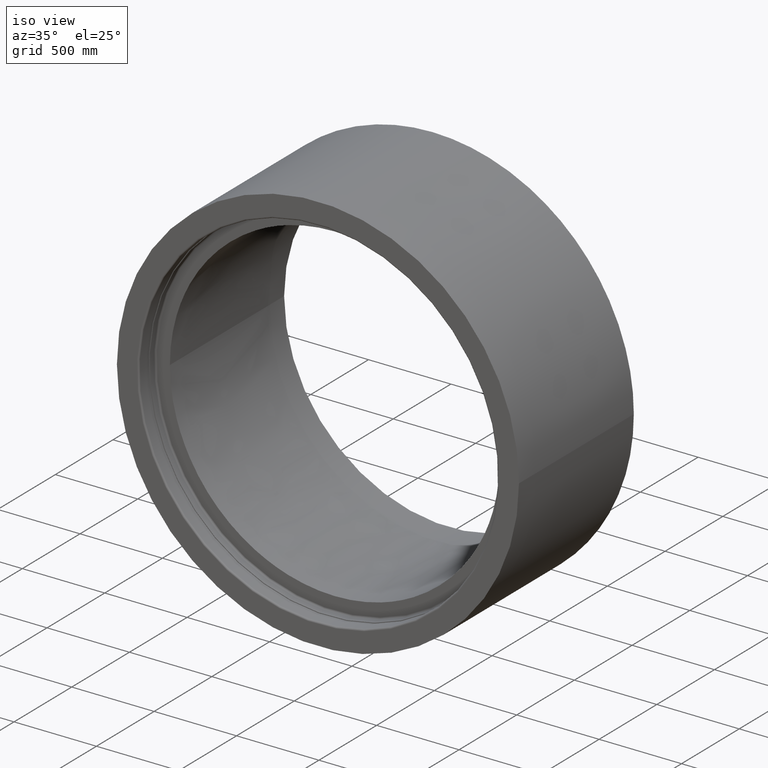
[diagram: clean part render]
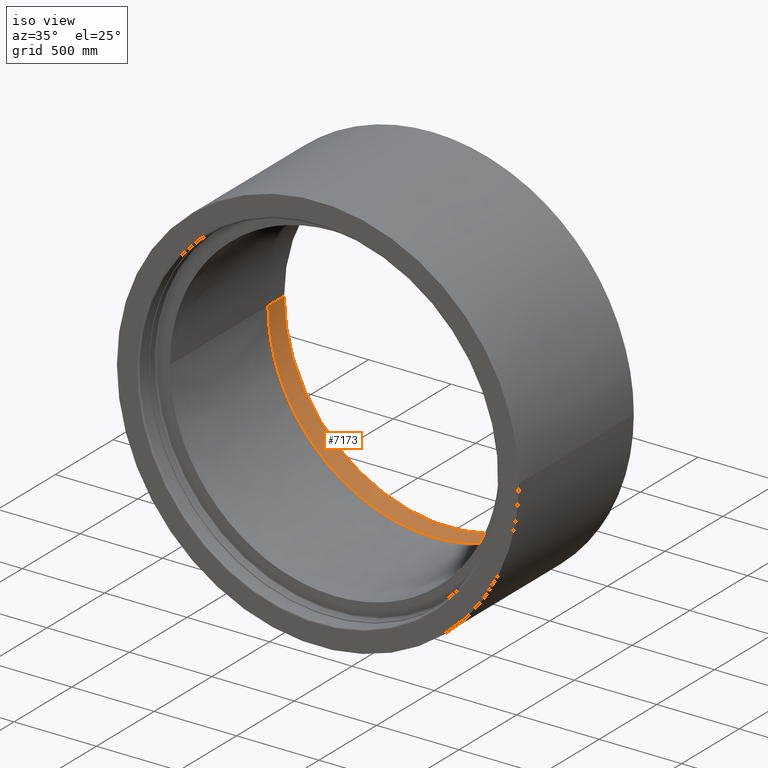
[diagram: same view with one face highlighted and labeled with its STEP entity id]
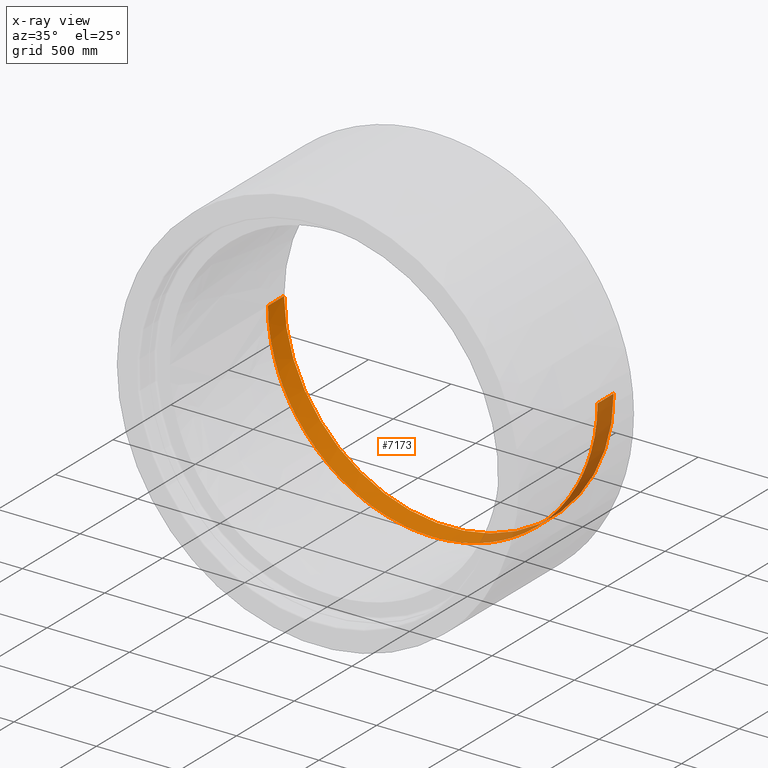
[diagram: x-ray of the same camera — body ghosted, the highlighted face saturated]
A machine part, iso view. The second image highlights one B-rep face of the part: STEP entity #7173.
The next image is the same camera in x-ray: the body ghosted, the highlighted face saturated — about 22% of this face is hidden behind the body in this view.
In plain terms, the highlighted cylindrical surface (partial cylindrical patch) has radius 1000 mm, axis along (0, -1, 0).
Its self-contained STEP definition (entity closure, byte-faithful):
#183 = CIRCLE ( 'NONE', #9343, 1000.000000000000000 ) ;
#251 = AXIS2_PLACEMENT_3D ( 'NONE', #13107, #20116, #2073 ) ;
#801 = ORIENTED_EDGE ( 'NONE', *, *, #18950, .F. ) ;
#953 = CARTESIAN_POINT ( 'NONE',  ( 1000.000000000000000, 1.224646799147353249E-13, 990.0000000000000000 ) ) ;
#1034 = ORIENTED_EDGE ( 'NONE', *, *, #21136, .F. ) ;
#1259 = CARTESIAN_POINT ( 'NONE',  ( -1000.000000000000000, 0.0000000000000000000, 990.0000000000000000 ) ) ;
#1347 = CARTESIAN_POINT ( 'NONE',  ( 0.0000000000000000000, 0.0000000000000000000, 850.0000000000000000 ) ) ;
#1647 = ORIENTED_EDGE ( 'NONE', *, *, #11086, .F. ) ;
#2073 = DIRECTION ( 'NONE',  ( 1.000000000000000000, 0.0000000000000000000, 0.0000000000000000000 ) ) ;
#2105 = CARTESIAN_POINT ( 'NONE',  ( 479.1394168684765873, 877.7388311902170699, 850.0000000000001137 ) ) ;
#2344 = AXIS2_PLACEMENT_3D ( 'NONE', #5813, #16394, #7658 ) ;
#2405 = ORIENTED_EDGE ( 'NONE', *, *, #10927, .F. ) ;
#2463 = CIRCLE ( 'NONE', #14588, 1000.000000000000227 ) ;
#2755 = VERTEX_POINT ( 'NONE', #18893 ) ;
#2961 = DIRECTION ( 'NONE',  ( 0.0000000000000000000, 0.0000000000000000000, 1.000000000000000000 ) ) ;
#3303 = VERTEX_POINT ( 'NONE', #953 ) ;
#3377 = DIRECTION ( 'NONE',  ( 1.000000000000000000, 0.0000000000000000000, 0.0000000000000000000 ) ) ;
#3536 = ORIENTED_EDGE ( 'NONE', *, *, #16318, .F. ) ;
#3613 = CIRCLE ( 'NONE', #10663, 1000.000000000000000 ) ;
#3952 = CARTESIAN_POINT ( 'NONE',  ( 0.0000000000000000000, 0.0000000000000000000, 850.0000000000000000 ) ) ;
#4129 = DIRECTION ( 'NONE',  ( -0.7822983126862211867, 0.6229039652854132525, 0.0000000000000000000 ) ) ;
#4187 = CARTESIAN_POINT ( 'NONE',  ( 0.0000000000000000000, 0.0000000000000000000, 850.0000000000000000 ) ) ;
#4197 = AXIS2_PLACEMENT_3D ( 'NONE', #13420, #2961, #6627 ) ;
#4288 = EDGE_CURVE ( 'NONE', #2755, #19114, #183, .T. ) ;
#4311 = VERTEX_POINT ( 'NONE', #15471 ) ;
#4640 = EDGE_CURVE ( 'NONE', #22520, #6585, #21842, .T. ) ;
#4798 = DIRECTION ( 'NONE',  ( 0.0000000000000000000, 0.0000000000000000000, -1.000000000000000000 ) ) ;
#4806 = ORIENTED_EDGE ( 'NONE', *, *, #4640, .F. ) ;
#4869 = CARTESIAN_POINT ( 'NONE',  ( 0.0000000000000000000, 0.0000000000000000000, 850.0000000000000000 ) ) ;
#5042 = CARTESIAN_POINT ( 'NONE',  ( 959.4578104416010547, 281.8523488617672683, 850.0000000000001137 ) ) ;
#5136 = CARTESIAN_POINT ( 'NONE',  ( -782.2983126862212657, 622.9039652854135056, 990.0000000000000000 ) ) ;
#5200 = ORIENTED_EDGE ( 'NONE', *, *, #4288, .F. ) ;
#5481 = AXIS2_PLACEMENT_3D ( 'NONE', #11898, #15573, #6610 ) ;
#5733 = VERTEX_POINT ( 'NONE', #18822 ) ;
#5813 = CARTESIAN_POINT ( 'NONE',  ( 0.0000000000000000000, 0.0000000000000000000, 850.0000000000000000 ) ) ;
#5968 = ORIENTED_EDGE ( 'NONE', *, *, #11928, .F. ) ;
#6122 = CARTESIAN_POINT ( 'NONE',  ( 1000.000000000000000, -5.665538897647979663E-13, 850.0000000000000000 ) ) ;
#6303 = ORIENTED_EDGE ( 'NONE', *, *, #17204, .F. ) ;
#6307 = AXIS2_PLACEMENT_3D ( 'NONE', #12689, #19700, #10959 ) ;
#6409 = VERTEX_POINT ( 'NONE', #15184 ) ;
#6511 = CIRCLE ( 'NONE', #251, 1000.000000000000000 ) ;
#6585 = VERTEX_POINT ( 'NONE', #2105 ) ;
#6610 = DIRECTION ( 'NONE',  ( -1.000000000000000000, 0.0000000000000000000, 0.0000000000000000000 ) ) ;
#6627 = DIRECTION ( 'NONE',  ( 1.000000000000000000, 0.0000000000000000000, 0.0000000000000000000 ) ) ;
#6851 = CARTESIAN_POINT ( 'NONE',  ( 0.0000000000000000000, 0.0000000000000000000, 850.0000000000000000 ) ) ;
#6996 = CIRCLE ( 'NONE', #19842, 1000.000000000000000 ) ;
#7173 = ADVANCED_FACE ( 'NONE', ( #15353 ), #12241, .F. ) ;
#7244 = VECTOR ( 'NONE', #4798, 1000.000000000000000 ) ;
#7601 = CIRCLE ( 'NONE', #20455, 1000.000000000000000 ) ;
#7635 = CARTESIAN_POINT ( 'NONE',  ( 707.1067811865477779, 707.1067811865472095, 850.0000000000000000 ) ) ;
#7658 = DIRECTION ( 'NONE',  ( 1.000000000000000000, 0.0000000000000000000, 0.0000000000000000000 ) ) ;
#8089 = ORIENTED_EDGE ( 'NONE', *, *, #11019, .F. ) ;
#8224 = EDGE_CURVE ( 'NONE', #19114, #18148, #13357, .T. ) ;
#8236 = CARTESIAN_POINT ( 'NONE',  ( 0.0000000000000000000, 0.0000000000000000000, 990.0000000000000000 ) ) ;
#8346 = DIRECTION ( 'NONE',  ( 0.0000000000000000000, 0.0000000000000000000, 1.000000000000000000 ) ) ;
#8453 = CARTESIAN_POINT ( 'NONE',  ( 0.0000000000000000000, 0.0000000000000000000, 850.0000000000000000 ) ) ;
#8573 = CARTESIAN_POINT ( 'NONE',  ( 0.0000000000000000000, 0.0000000000000000000, 850.0000000000000000 ) ) ;
#9175 = CARTESIAN_POINT ( 'NONE',  ( 0.0000000000000000000, 0.0000000000000000000, 990.0000000000000000 ) ) ;
#9343 = AXIS2_PLACEMENT_3D ( 'NONE', #8453, #12023, #14199 ) ;
#9705 = DIRECTION ( 'NONE',  ( 0.0000000000000000000, 0.0000000000000000000, -1.000000000000000000 ) ) ;
#10176 = DIRECTION ( 'NONE',  ( 0.0000000000000000000, 0.0000000000000000000, 1.000000000000000000 ) ) ;
#10606 = DIRECTION ( 'NONE',  ( 0.0000000000000000000, 0.0000000000000000000, 1.000000000000000000 ) ) ;
#10663 = AXIS2_PLACEMENT_3D ( 'NONE', #1347, #10176, #11800 ) ;
#10927 = EDGE_CURVE ( 'NONE', #15377, #2755, #3613, .T. ) ;
#10959 = DIRECTION ( 'NONE',  ( 1.000000000000000000, 0.0000000000000000000, 0.0000000000000000000 ) ) ;
#11019 = EDGE_CURVE ( 'NONE', #18148, #16602, #6996, .T. ) ;
#11086 = EDGE_CURVE ( 'NONE', #12974, #4311, #11163, .T. ) ;
#11128 = EDGE_CURVE ( 'NONE', #4311, #15377, #17037, .T. ) ;
#11163 = CIRCLE ( 'NONE', #4197, 1000.000000000000000 ) ;
#11249 = ORIENTED_EDGE ( 'NONE', *, *, #21467, .F. ) ;
#11648 = CIRCLE ( 'NONE', #21157, 1000.000000000000000 ) ;
#11653 = VERTEX_POINT ( 'NONE', #6122 ) ;
#11800 = DIRECTION ( 'NONE',  ( 1.000000000000000000, 0.0000000000000000000, 0.0000000000000000000 ) ) ;
#11894 = DIRECTION ( 'NONE',  ( 0.0000000000000000000, 0.0000000000000000000, 1.000000000000000000 ) ) ;
#11898 = CARTESIAN_POINT ( 'NONE',  ( 0.0000000000000000000, 0.0000000000000000000, 1000.000000000000000 ) ) ;
#11915 = DIRECTION ( 'NONE',  ( 0.0000000000000000000, 0.0000000000000000000, 1.000000000000000000 ) ) ;
#11928 = EDGE_CURVE ( 'NONE', #3303, #11653, #13987, .T. ) ;
#12023 = DIRECTION ( 'NONE',  ( 0.0000000000000000000, 0.0000000000000000000, 1.000000000000000000 ) ) ;
#12036 = VERTEX_POINT ( 'NONE', #5136 ) ;
#12105 = DIRECTION ( 'NONE',  ( 0.0000000000000000000, 0.0000000000000000000, 1.000000000000000000 ) ) ;
#12201 = CARTESIAN_POINT ( 'NONE',  ( -479.1394178595961080, 877.7388330135169099, 849.9999999999998863 ) ) ;
#12241 = CYLINDRICAL_SURFACE ( 'NONE', #5481, 1000.000000000000000 ) ;
#12361 = CIRCLE ( 'NONE', #19714, 1000.000000000000227 ) ;
#12401 = ORIENTED_EDGE ( 'NONE', *, *, #18159, .F. ) ;
#12689 = CARTESIAN_POINT ( 'NONE',  ( 0.0000000000000000000, 0.0000000000000000000, 850.0000000000000000 ) ) ;
#12974 = VERTEX_POINT ( 'NONE', #15545 ) ;
#13107 = CARTESIAN_POINT ( 'NONE',  ( 0.0000000000000000000, 0.0000000000000000000, 850.0000000000000000 ) ) ;
#13279 = CARTESIAN_POINT ( 'NONE',  ( -1000.000000000000000, 0.0000000000000000000, 1000.000000000000000 ) ) ;
#13357 = CIRCLE ( 'NONE', #2344, 1000.000000000000000 ) ;
#13420 = CARTESIAN_POINT ( 'NONE',  ( 0.0000000000000000000, 0.0000000000000000000, 850.0000000000000000 ) ) ;
#13500 = LINE ( 'NONE', #13279, #20826 ) ;
#13598 = ORIENTED_EDGE ( 'NONE', *, *, #8224, .F. ) ;
#13652 = CARTESIAN_POINT ( 'NONE',  ( -1000.000000000000000, 4.440892098500626162E-13, 850.0000000000000000 ) ) ;
#13828 = VERTEX_POINT ( 'NONE', #1259 ) ;
#13987 = LINE ( 'NONE', #20762, #7244 ) ;
#14051 = VERTEX_POINT ( 'NONE', #5042 ) ;
#14074 = DIRECTION ( 'NONE',  ( 1.000000000000000000, 0.0000000000000000000, 0.0000000000000000000 ) ) ;
#14199 = DIRECTION ( 'NONE',  ( 1.000000000000000000, 0.0000000000000000000, 0.0000000000000000000 ) ) ;
#14532 = DIRECTION ( 'NONE',  ( 0.0000000000000000000, 0.0000000000000000000, 1.000000000000000000 ) ) ;
#14588 = AXIS2_PLACEMENT_3D ( 'NONE', #9175, #16423, #4129 ) ;
#14628 = EDGE_CURVE ( 'NONE', #13828, #16602, #13500, .T. ) ;
#15184 = CARTESIAN_POINT ( 'NONE',  ( 877.7388330090686850, 479.1394178676975457, 849.9999999999998863 ) ) ;
#15257 = DIRECTION ( 'NONE',  ( -0.7822983126862211867, 0.6229039652854132525, 0.0000000000000000000 ) ) ;
#15353 = FACE_OUTER_BOUND ( 'NONE', #16196, .T. ) ;
#15377 = VERTEX_POINT ( 'NONE', #12201 ) ;
#15471 = CARTESIAN_POINT ( 'NONE',  ( -281.8523488860598150, 959.4578104344046778, 849.9999999999998863 ) ) ;
#15545 = CARTESIAN_POINT ( 'NONE',  ( 3.885780586188047891E-13, 1000.000000000000000, 850.0000000000000000 ) ) ;
#15573 = DIRECTION ( 'NONE',  ( 0.0000000000000000000, 0.0000000000000000000, -1.000000000000000000 ) ) ;
#15712 = ORIENTED_EDGE ( 'NONE', *, *, #15863, .F. ) ;
#15838 = AXIS2_PLACEMENT_3D ( 'NONE', #6851, #11915, #17200 ) ;
#15863 = EDGE_CURVE ( 'NONE', #11653, #14051, #11648, .T. ) ;
#16196 = EDGE_LOOP ( 'NONE', ( #5968, #3536, #801, #17707, #8089, #13598, #5200, #2405, #19412, #1647, #12401, #6303, #4806, #11249, #1034, #15712 ) ) ;
#16214 = CIRCLE ( 'NONE', #6307, 1000.000000000000000 ) ;
#16246 = DIRECTION ( 'NONE',  ( 1.000000000000000000, 0.0000000000000000000, 0.0000000000000000000 ) ) ;
#16318 = EDGE_CURVE ( 'NONE', #12036, #3303, #2463, .T. ) ;
#16394 = DIRECTION ( 'NONE',  ( 0.0000000000000000000, 0.0000000000000000000, 1.000000000000000000 ) ) ;
#16423 = DIRECTION ( 'NONE',  ( 0.0000000000000000000, 0.0000000000000000000, -1.000000000000000000 ) ) ;
#16439 = CARTESIAN_POINT ( 'NONE',  ( -959.4578124397140755, 281.8523494227334822, 850.0000000000001137 ) ) ;
#16602 = VERTEX_POINT ( 'NONE', #13652 ) ;
#17037 = CIRCLE ( 'NONE', #15838, 1000.000000000000000 ) ;
#17200 = DIRECTION ( 'NONE',  ( 1.000000000000000000, 0.0000000000000000000, 0.0000000000000000000 ) ) ;
#17204 = EDGE_CURVE ( 'NONE', #6585, #5733, #7601, .T. ) ;
#17707 = ORIENTED_EDGE ( 'NONE', *, *, #14628, .T. ) ;
#17782 = AXIS2_PLACEMENT_3D ( 'NONE', #4869, #12105, #3377 ) ;
#18148 = VERTEX_POINT ( 'NONE', #16439 ) ;
#18159 = EDGE_CURVE ( 'NONE', #5733, #12974, #6511, .T. ) ;
#18822 = CARTESIAN_POINT ( 'NONE',  ( 281.8523494333110762, 959.4578124366377097, 849.9999999999998863 ) ) ;
#18893 = CARTESIAN_POINT ( 'NONE',  ( -707.1067811865472095, 707.1067811865477779, 850.0000000000000000 ) ) ;
#18950 = EDGE_CURVE ( 'NONE', #13828, #12036, #12361, .T. ) ;
#19114 = VERTEX_POINT ( 'NONE', #19908 ) ;
#19412 = ORIENTED_EDGE ( 'NONE', *, *, #11128, .F. ) ;
#19504 = CIRCLE ( 'NONE', #20978, 1000.000000000000000 ) ;
#19700 = DIRECTION ( 'NONE',  ( 0.0000000000000000000, 0.0000000000000000000, 1.000000000000000000 ) ) ;
#19714 = AXIS2_PLACEMENT_3D ( 'NONE', #8236, #22367, #15257 ) ;
#19842 = AXIS2_PLACEMENT_3D ( 'NONE', #8573, #8346, #22369 ) ;
#19908 = CARTESIAN_POINT ( 'NONE',  ( -877.7388311878137301, 479.1394168729856915, 849.9999999999998863 ) ) ;
#20116 = DIRECTION ( 'NONE',  ( 0.0000000000000000000, 0.0000000000000000000, 1.000000000000000000 ) ) ;
#20455 = AXIS2_PLACEMENT_3D ( 'NONE', #20852, #11894, #14074 ) ;
#20762 = CARTESIAN_POINT ( 'NONE',  ( 1000.000000000000000, 1.224646799147353249E-13, 1000.000000000000000 ) ) ;
#20826 = VECTOR ( 'NONE', #9705, 1000.000000000000000 ) ;
#20852 = CARTESIAN_POINT ( 'NONE',  ( 0.0000000000000000000, 0.0000000000000000000, 850.0000000000000000 ) ) ;
#20978 = AXIS2_PLACEMENT_3D ( 'NONE', #4187, #14532, #21301 ) ;
#21136 = EDGE_CURVE ( 'NONE', #14051, #6409, #19504, .T. ) ;
#21157 = AXIS2_PLACEMENT_3D ( 'NONE', #3952, #10606, #16246 ) ;
#21301 = DIRECTION ( 'NONE',  ( 1.000000000000000000, 0.0000000000000000000, 0.0000000000000000000 ) ) ;
#21467 = EDGE_CURVE ( 'NONE', #6409, #22520, #16214, .T. ) ;
#21842 = CIRCLE ( 'NONE', #17782, 1000.000000000000000 ) ;
#22367 = DIRECTION ( 'NONE',  ( 0.0000000000000000000, 0.0000000000000000000, -1.000000000000000000 ) ) ;
#22369 = DIRECTION ( 'NONE',  ( 1.000000000000000000, 0.0000000000000000000, 0.0000000000000000000 ) ) ;
#22520 = VERTEX_POINT ( 'NONE', #7635 ) ;